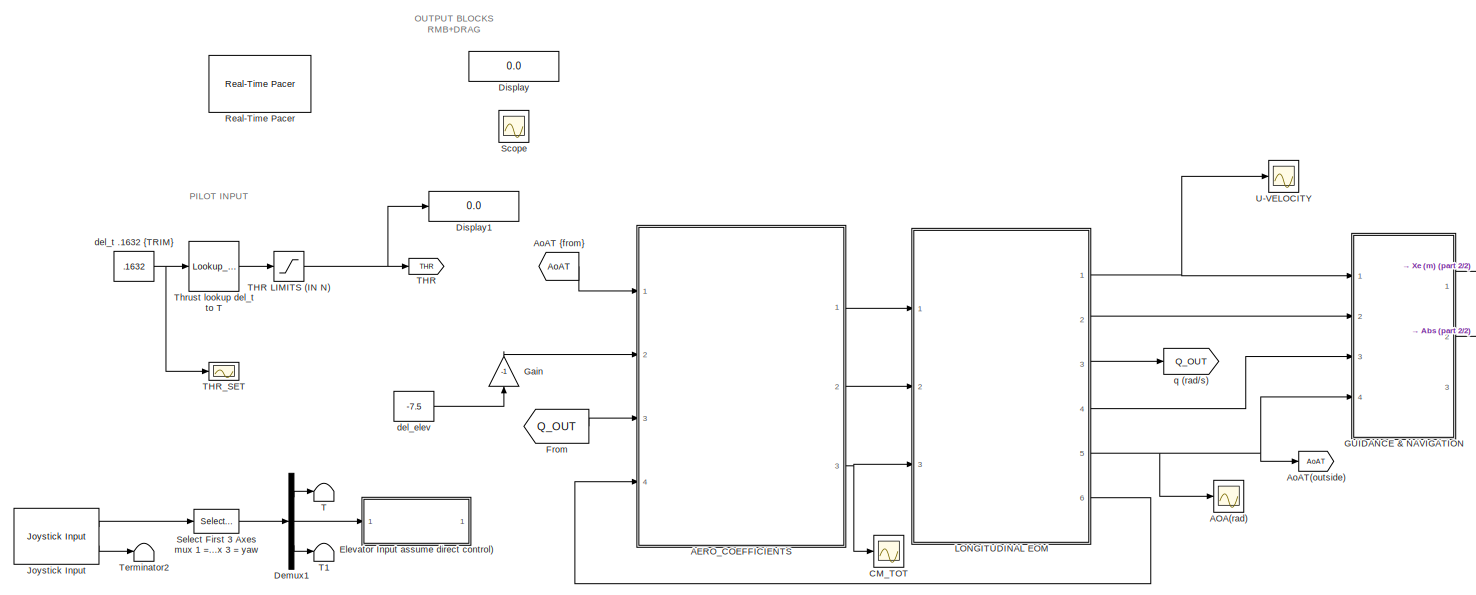
[diagram: root canvas - part 1/2, most of the canvas]
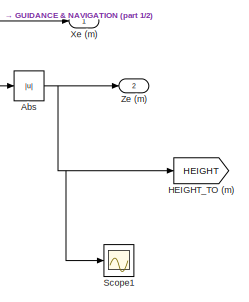
[diagram: root canvas - part 2/2, bottom right region]
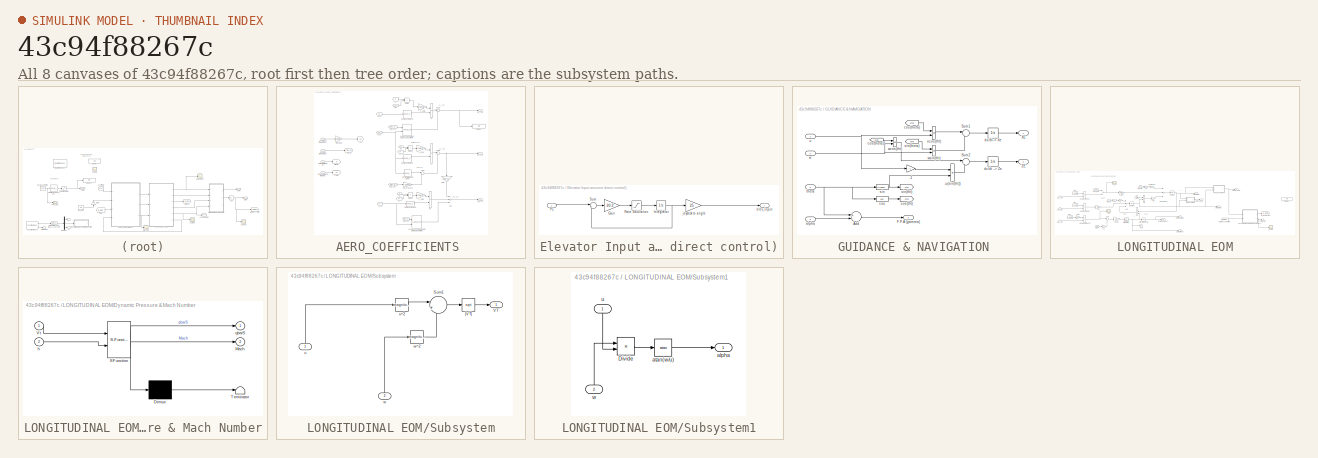
[diagram: thumbnail index - all 8 canvases of the model, root first then tree order]
MODEL slx_43c94f88267c
KIND model
CONFIG AbsTol = auto
CONFIG FixedStep = auto
CONFIG MaxStep = auto
CONFIG MinStep = auto
CONFIG RelTol = 1e-3
CONFIG SampleTimeConstraint = Unconstrained
CONFIG Solver = ode45
CONFIG SolverMode = Auto
CONFIG SolverName = ode45
CONFIG StartTime = 0.0
CONFIG StopTime = 15
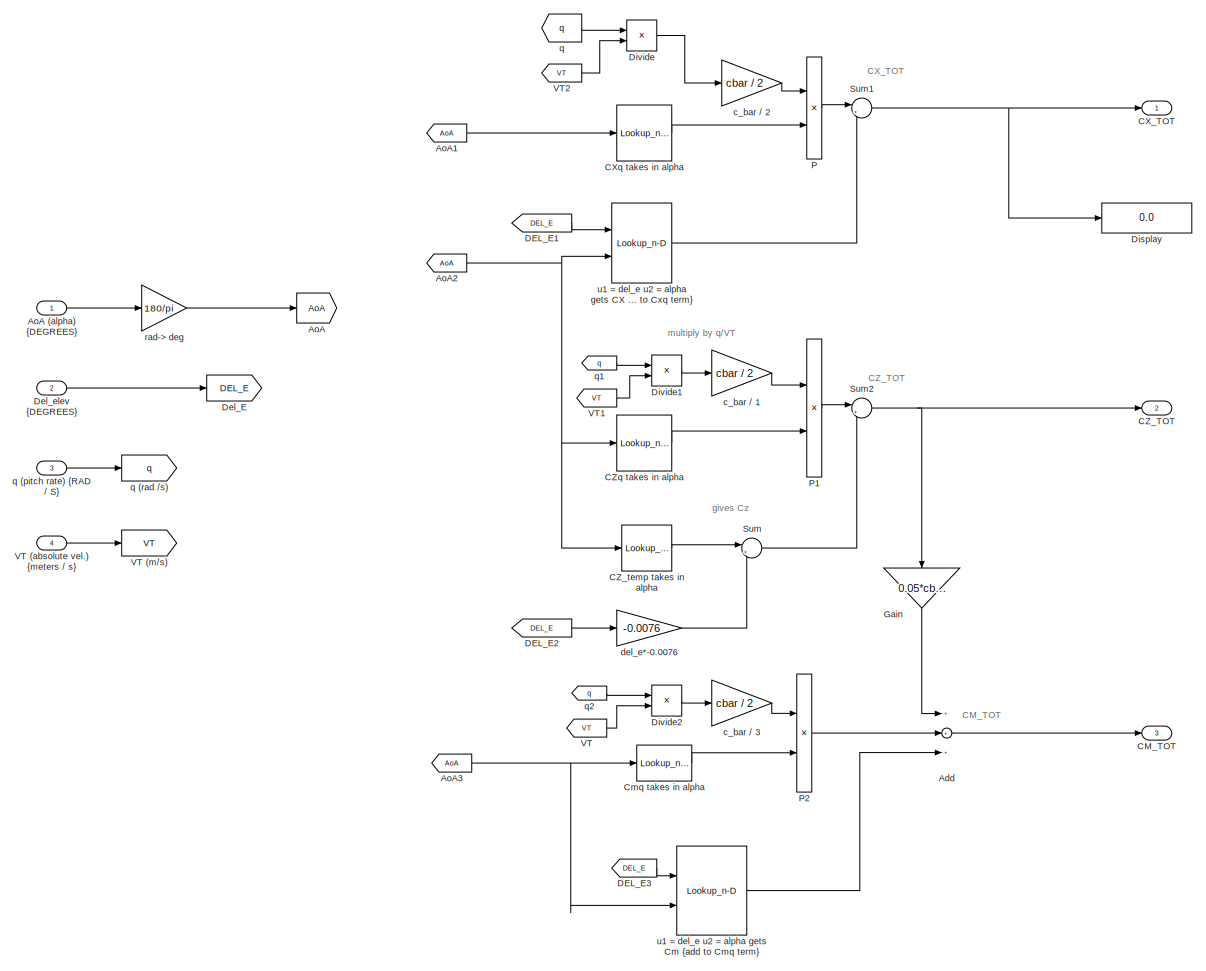
[diagram: AERO_COEFFICIENTS  - part 1/1, most of the canvas]
BLOCK [SubSystem] AERO_COEFFICIENTS 
  Ports = [4, 3]
  RequestExecContextInheritance = off
BLOCK [Sum] AERO_COEFFICIENTS /Add
  InputSameDT = off
  Inputs = +++
  OutDataTypeStr = Inherit: Inherit via internal rule
  Ports = [3, 1]
  SaturateOnIntegerOverflow = off
BLOCK [Goto] AERO_COEFFICIENTS /AoA
  GotoTag = AoA
BLOCK [Inport] AERO_COEFFICIENTS /AoA (alpha) {DEGREES}
  IconDisplay = Port number
BLOCK [From] AERO_COEFFICIENTS /AoA1
  GotoTag = AoA
BLOCK [From] AERO_COEFFICIENTS /AoA2
  GotoTag = AoA
BLOCK [From] AERO_COEFFICIENTS /AoA3
  GotoTag = AoA
BLOCK [Outport] AERO_COEFFICIENTS /CM_TOT
  IconDisplay = Port number
  Port = 3
BLOCK [Outport] AERO_COEFFICIENTS /CX_TOT
  IconDisplay = Port number
BLOCK [Lookup_n-D] AERO_COEFFICIENTS /CXq takes in alpha
  BreakpointsForDimension1 = [-10,-5,0,5,10,15,20,25,30,35,40,45]
  BreakpointsForDimension1Max = [10]
  BreakpointsForDimension1Min = [-10]
  InternalRulePriority = Speed
  NumberOfTableDimensions = 1
  OutMax = [1.000]
  OutMin = [-1.000]
  Ports = [1, 1]
  RndMeth = Simplest
  Table = [-.267,.110,.308,1.34,2.08,2.91,2.76,2.05,1.5,1.49,1.83,1.21]
BLOCK [Outport] AERO_COEFFICIENTS /CZ_TOT
  IconDisplay = Port number
  Port = 2
BLOCK [Lookup_n-D] AERO_COEFFICIENTS /CZ_temp takes in alpha
  BreakpointsForDimension1 = [-10,-5,0,5,10,15,20,25,30,35,40,45]
  BreakpointsForDimension1Max = [10]
  BreakpointsForDimension1Min = [-10]
  InternalRulePriority = Speed
  NumberOfTableDimensions = 1
  OutMax = [1.000]
  OutMin = [-1.000]
  Ports = [1, 1]
  RndMeth = Simplest
  Table = [.770, .241, -.100, -.416, -.731, -1.053, -1.366, -1.646, -1.917, -2.120, -2.248, -2.229]
BLOCK [Lookup_n-D] AERO_COEFFICIENTS /CZq takes in alpha
  BreakpointsForDimension1 = [-10,-5,0,5,10,15,20,25,30,35,40,45]
  BreakpointsForDimension1Max = [10]
  BreakpointsForDimension1Min = [-10]
  InternalRulePriority = Speed
  NumberOfTableDimensions = 1
  OutMax = [1.000]
  OutMin = [-1.000]
  Ports = [1, 1]
  RndMeth = Simplest
  Table = [-8.8, -25.8, -28.9, -31.4, -31.2, -30.7, -27.7, -28.2,   -29, -29.8, -38.3, -35.3]
BLOCK [Lookup_n-D] AERO_COEFFICIENTS /Cmq takes in alpha
  BreakpointsForDimension1 = [-10,-5,0,5,10,15,20,25,30,35,40,45]
  BreakpointsForDimension1Max = [10]
  BreakpointsForDimension1Min = [-10]
  InternalRulePriority = Speed
  NumberOfTableDimensions = 1
  OutMax = [1.000]
  OutMin = [-1.000]
  Ports = [1, 1]
  RndMeth = Simplest
  Table = [-7.21,  -.54, -5.23, -5.26, -6.11, -6.64, -5.69,    -6,  -6.2,  -6.4,  -6.6,    -6]
BLOCK [From] AERO_COEFFICIENTS /DEL_E1
  GotoTag = DEL_E
BLOCK [From] AERO_COEFFICIENTS /DEL_E2
  GotoTag = DEL_E
BLOCK [From] AERO_COEFFICIENTS /DEL_E3
  GotoTag = DEL_E
BLOCK [Goto] AERO_COEFFICIENTS /Del_E
  GotoTag = DEL_E
BLOCK [Inport] AERO_COEFFICIENTS /Del_elev {DEGREES}
  IconDisplay = Port number
  Port = 2
BLOCK [Display] AERO_COEFFICIENTS /Display
  Decimation = 1
  Ports = [1]
BLOCK [Product] AERO_COEFFICIENTS /Divide
  InputSameDT = off
  Inputs = */
  OutDataTypeStr = Inherit: Inherit via internal rule
  Ports = [2, 1]
  RndMeth = Floor
  SaturateOnIntegerOverflow = off
BLOCK [Product] AERO_COEFFICIENTS /Divide1
  InputSameDT = off
  Inputs = */
  OutDataTypeStr = Inherit: Inherit via internal rule
  Ports = [2, 1]
  RndMeth = Floor
  SaturateOnIntegerOverflow = off
BLOCK [Product] AERO_COEFFICIENTS /Divide2
  InputSameDT = off
  Inputs = */
  OutDataTypeStr = Inherit: Inherit via internal rule
  Ports = [2, 1]
  RndMeth = Floor
  SaturateOnIntegerOverflow = off
BLOCK [Gain] AERO_COEFFICIENTS /Gain
  Gain = 0.05*cbar
  OutDataTypeStr = Inherit: Inherit via internal rule
  ParamDataTypeStr = Inherit: Inherit via internal rule
  SaturateOnIntegerOverflow = off
BLOCK [Product] AERO_COEFFICIENTS /P
  InputSameDT = off
  OutDataTypeStr = Inherit: Inherit via internal rule
  Ports = [2, 1]
  RndMeth = Floor
  SaturateOnIntegerOverflow = off
BLOCK [Product] AERO_COEFFICIENTS /P1
  InputSameDT = off
  OutDataTypeStr = Inherit: Inherit via internal rule
  Ports = [2, 1]
  RndMeth = Floor
  SaturateOnIntegerOverflow = off
BLOCK [Product] AERO_COEFFICIENTS /P2
  InputSameDT = off
  OutDataTypeStr = Inherit: Inherit via internal rule
  Ports = [2, 1]
  RndMeth = Floor
  SaturateOnIntegerOverflow = off
BLOCK [Sum] AERO_COEFFICIENTS /Sum
  IconShape = round
  InputSameDT = off
  Inputs = |++
  OutDataTypeStr = Inherit: Inherit via internal rule
  Ports = [2, 1]
  SaturateOnIntegerOverflow = off
BLOCK [Sum] AERO_COEFFICIENTS /Sum1
  IconShape = round
  InputSameDT = off
  Inputs = |++
  OutDataTypeStr = Inherit: Inherit via internal rule
  Ports = [2, 1]
  SaturateOnIntegerOverflow = off
BLOCK [Sum] AERO_COEFFICIENTS /Sum2
  IconShape = round
  InputSameDT = off
  Inputs = |++
  OutDataTypeStr = Inherit: Inherit via internal rule
  Ports = [2, 1]
  SaturateOnIntegerOverflow = off
BLOCK [From] AERO_COEFFICIENTS /VT
  GotoTag = VT
BLOCK [Inport] AERO_COEFFICIENTS /VT (absolute vel.) {meters // s}
  IconDisplay = Port number
  Port = 4
BLOCK [Goto] AERO_COEFFICIENTS /VT (m//s)
  GotoTag = VT
BLOCK [From] AERO_COEFFICIENTS /VT1
  GotoTag = VT
BLOCK [From] AERO_COEFFICIENTS /VT2
  GotoTag = VT
BLOCK [Gain] AERO_COEFFICIENTS /c_bar // 1
  Gain = cbar / 2
  OutDataTypeStr = Inherit: Inherit via internal rule
  ParamDataTypeStr = Inherit: Inherit via internal rule
  SaturateOnIntegerOverflow = off
BLOCK [Gain] AERO_COEFFICIENTS /c_bar // 2
  Gain = cbar / 2
  OutDataTypeStr = Inherit: Inherit via internal rule
  ParamDataTypeStr = Inherit: Inherit via internal rule
  SaturateOnIntegerOverflow = off
BLOCK [Gain] AERO_COEFFICIENTS /c_bar // 3
  Gain = cbar / 2
  OutDataTypeStr = Inherit: Inherit via internal rule
  ParamDataTypeStr = Inherit: Inherit via internal rule
  SaturateOnIntegerOverflow = off
BLOCK [Gain] AERO_COEFFICIENTS /del_e*-0.0076
  Gain = -0.0076
  OutDataTypeStr = Inherit: Inherit via internal rule
  ParamDataTypeStr = Inherit: Inherit via internal rule
  SaturateOnIntegerOverflow = off
BLOCK [From] AERO_COEFFICIENTS /q
  GotoTag = q
BLOCK [Inport] AERO_COEFFICIENTS /q (pitch rate) {RAD // S}
  IconDisplay = Port number
  Port = 3
BLOCK [Goto] AERO_COEFFICIENTS /q (rad //s)
  GotoTag = q
BLOCK [From] AERO_COEFFICIENTS /q1
  GotoTag = q
BLOCK [From] AERO_COEFFICIENTS /q2
  GotoTag = q
BLOCK [Gain] AERO_COEFFICIENTS /rad-> deg
  Gain = 180/pi
  OutDataTypeStr = Inherit: Inherit via internal rule
  ParamDataTypeStr = Inherit: Inherit via internal rule
  SaturateOnIntegerOverflow = off
BLOCK [Lookup_n-D] AERO_COEFFICIENTS /u1 = del_e u2 = alpha gets CX {add to Cxq term}
  BreakpointsForDimension1 = [-25 -12.5 0 12.5 25]
  BreakpointsForDimension2 = [-10 -5 0 5 10 15 20 25 30 35 40 45]
  IndexSearchMethod = Evenly spaced points
  InternalRulePriority = Speed
  Ports = [2, 1]
  RndMeth = Simplest
  Table = [-.083, -.073, -.076, -.072, -.046, .012, .024, .025, .043, .053, .047, .040; -.040, -.038, -.039, -.025,  .006, .062, .087, .085, .100, .110, .104, .091;-.022, -.020, -.021, -.004,  .032, .094, .128, .130, .154, .161, .155, .138; -.048, -.038, -.040, -.021,  .016, .083, .127, .137, .162, .177, .179, .167; -.099, -.081, -.081, -.063, -.025, .044, .097, .113, .145, .167, .174, .166]
BLOCK [Lookup_n-D] AERO_COEFFICIENTS /u1 = del_e u2 = alpha gets Cm {add to Cmq term}
  BreakpointsForDimension1 = [-25 -12.5 0 12.5 25]
  BreakpointsForDimension2 = [-10 -5 0 5 10 15 20 25 30 35 40 45]
  IndexSearchMethod = Evenly spaced points
  InternalRulePriority = Speed
  Ports = [2, 1]
  RndMeth = Simplest
  Table = [.205,  .168,  .186,  .196,  .213,  .251,  .245,  .238,  .252,  .231,  .198,  .192; .081,  .077,  .107,  .110,  .110,  .141,  .127,  .119,  .133,  .108,  .081,  .093; -.046, -.020, -.009, -.005, -.006,  .010,  .006, -.001,  .014,   0.0, -.013,  .032; -.174, -.145, -.121, -.127, -.129, -.102, -.097, -.113, -.087, -.084, -.069, -.006; -.259, -.202, -.184, -.193, -.199, -.150, -.160, -.167, -.104, -....<+18ch>
BLOCK [Scope] AOA(rad)
  Floating = off
  LimitDataPoints = off
  NumInputPorts = 1
  Ports = [1]
  SaveName = AOA
  SaveToWorkspace = on
BLOCK [Abs] Abs
  SaturateOnIntegerOverflow = off
BLOCK [From] AoAT {from}
  GotoTag = AoAT
  TagVisibility = global
BLOCK [Goto] AoAT(outside)
  GotoTag = AoAT
  TagVisibility = global
BLOCK [Scope] CM_TOT
  Floating = off
  LimitDataPoints = off
  NumInputPorts = 1
  Ports = [1]
  SaveName = CMTOT
  SaveToWorkspace = on
BLOCK [Demux] Demux1
  Commented = on
  DisplayOption = bar
  Outputs = 3
  Ports = [1, 3]
BLOCK [Display] Display
  Decimation = 1
  Ports = [1]
BLOCK [Display] Display1
  Decimation = 1
  Format = bank
  Ports = [1]
BLOCK [SubSystem] Elevator Input assume direct control)
  Commented = on
  Ports = [1, 1]
  RequestExecContextInheritance = off
BLOCK [Gain] Elevator Input assume direct control)/Gain
  Gain = 20.2
BLOCK [Integrator] Elevator Input assume direct control)/Integrator 
  InitialCondition = -2.4607
  LowerSaturationLimit = -25
  Ports = [1, 1]
  UpperSaturationLimit = 25
BLOCK [Inport] Elevator Input assume direct control)/PC
  IconDisplay = Port number
BLOCK [Saturate] Elevator Input assume direct control)/Rate Saturation
  InputPortMap = u0
  LowerLimit = -60
  Ports = [1, 1]
  UpperLimit = 60
BLOCK [Sum] Elevator Input assume direct control)/Sum
  IconShape = round
  Inputs = |+-
  Ports = [2, 1]
BLOCK [Outport] Elevator Input assume direct control)/elev_input
  IconDisplay = Port number
BLOCK [Gain] Elevator Input assume direct control)/joystick to angle
  Gain = 25
BLOCK [From] From
  GotoTag = Q_OUT
BLOCK [SubSystem] GUIDANCE & NAVIGATION 
  Ports = [4, 3]
  RequestExecContextInheritance = off
BLOCK [Gain] GUIDANCE & NAVIGATION /-1
  Gain = -1
  OutDataTypeStr = Inherit: Inherit via internal rule
  ParamDataTypeStr = Inherit: Inherit via internal rule
  SaturateOnIntegerOverflow = off
BLOCK [Product] GUIDANCE & NAVIGATION /-u(sin(tht))
  InputSameDT = off
  OutDataTypeStr = Inherit: Inherit via internal rule
  Ports = [2, 1]
  RndMeth = Floor
  SaturateOnIntegerOverflow = off
BLOCK [Sum] GUIDANCE & NAVIGATION /Add
  InputSameDT = off
  Inputs = +-
  OutDataTypeStr = Inherit: Inherit via internal rule
  Ports = [2, 1]
  SaturateOnIntegerOverflow = off
BLOCK [Outport] GUIDANCE & NAVIGATION /F.P.A (gamma)
  IconDisplay = Port number
  Port = 3
BLOCK [Sum] GUIDANCE & NAVIGATION /Sum1
  IconShape = round
  InputSameDT = off
  Inputs = |++
  OutDataTypeStr = Inherit: Inherit via internal rule
  Ports = [2, 1]
  SaturateOnIntegerOverflow = off
BLOCK [Sum] GUIDANCE & NAVIGATION /Sum2
  IconShape = round
  InputSameDT = off
  Inputs = |++
  OutDataTypeStr = Inherit: Inherit via internal rule
  Ports = [2, 1]
  SaturateOnIntegerOverflow = off
BLOCK [Outport] GUIDANCE & NAVIGATION /XE
  IconDisplay = Port number
BLOCK [Outport] GUIDANCE & NAVIGATION /ZE
  IconDisplay = Port number
  Port = 2
BLOCK [Inport] GUIDANCE & NAVIGATION /alpha
  IconDisplay = Port number
  Port = 4
BLOCK [Trigonometry] GUIDANCE & NAVIGATION /cos
  Operator = cos
  Ports = [1, 1]
BLOCK [From] GUIDANCE & NAVIGATION /cos(theta)
  GotoTag = ctht
BLOCK [From] GUIDANCE & NAVIGATION /cos(theta)1
  GotoTag = ctht
BLOCK [Goto] GUIDANCE & NAVIGATION /cos(tht)
  GotoTag = ctht
BLOCK [Integrator] GUIDANCE & NAVIGATION /dx//dt--> Xe
  InitialCondition = XE_0
  Ports = [1, 1]
BLOCK [Integrator] GUIDANCE & NAVIGATION /dz//dt --> Ze
  InitialCondition = ZE_0
  Ports = [1, 1]
BLOCK [Trigonometry] GUIDANCE & NAVIGATION /sin
  Ports = [1, 1]
BLOCK [From] GUIDANCE & NAVIGATION /sin(theta)
  GotoTag = stht
BLOCK [Goto] GUIDANCE & NAVIGATION /sin(tht)
  GotoTag = stht
BLOCK [Inport] GUIDANCE & NAVIGATION /theta
  IconDisplay = Port number
  Port = 3
BLOCK [Inport] GUIDANCE & NAVIGATION /u
  IconDisplay = Port number
BLOCK [Product] GUIDANCE & NAVIGATION /ucos(tht)
  InputSameDT = off
  OutDataTypeStr = Inherit: Inherit via internal rule
  Ports = [2, 1]
  RndMeth = Floor
  SaturateOnIntegerOverflow = off
BLOCK [Inport] GUIDANCE & NAVIGATION /w
  IconDisplay = Port number
  Port = 2
BLOCK [Product] GUIDANCE & NAVIGATION /wcos(tht)
  InputSameDT = off
  OutDataTypeStr = Inherit: Inherit via internal rule
  Ports = [2, 1]
  RndMeth = Floor
  SaturateOnIntegerOverflow = off
BLOCK [Product] GUIDANCE & NAVIGATION /wsin(tht)
  InputSameDT = off
  OutDataTypeStr = Inherit: Inherit via internal rule
  Ports = [2, 1]
  RndMeth = Floor
  SaturateOnIntegerOverflow = off
BLOCK [Gain] Gain
  Gain = -1
  OutDataTypeStr = Inherit: Inherit via internal rule
  ParamDataTypeStr = Inherit: Inherit via internal rule
  SaturateOnIntegerOverflow = off
BLOCK [Goto] HEIGHT_TO (m)
  GotoTag = HEIGHT
  TagVisibility = global
BLOCK [Reference] Joystick Input  REF=vrlib/Joystick Input
  Commented = on
  Ports = [0, 2]
  SourceBlock = vrlib/Joystick Input
  SourceType = Joystick Input
  adjustports = off
  forcefeed = off
  joyid = 1
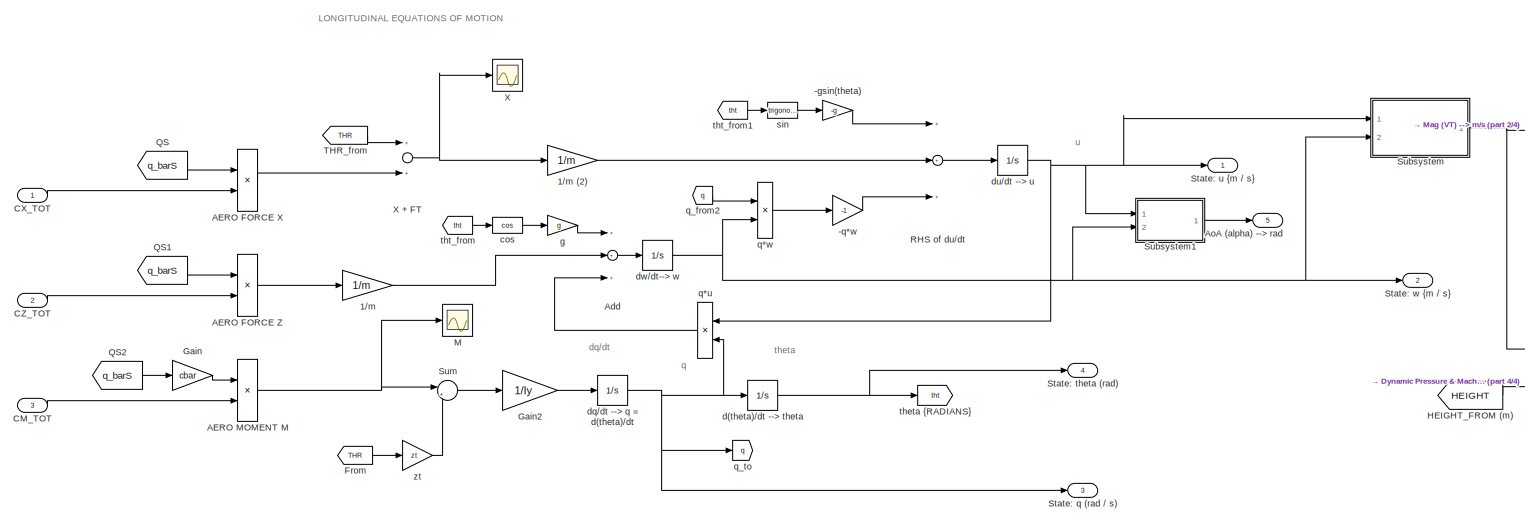
[diagram: LONGITUDINAL EOM - part 1/4, most of the canvas]
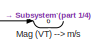
[diagram: LONGITUDINAL EOM - part 2/4, top right region]
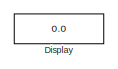
[diagram: LONGITUDINAL EOM - part 3/4, middle right region]
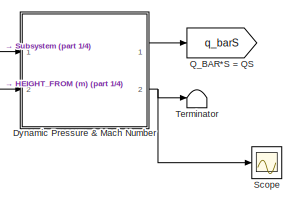
[diagram: LONGITUDINAL EOM - part 4/4, bottom right region]
BLOCK [SubSystem] LONGITUDINAL EOM
  Ports = [3, 6]
  RequestExecContextInheritance = off
BLOCK [Gain] LONGITUDINAL EOM/-gsin(theta)
  Gain = -g
  OutDataTypeStr = Inherit: Inherit via internal rule
  ParamDataTypeStr = Inherit: Inherit via internal rule
  SaturateOnIntegerOverflow = off
BLOCK [Gain] LONGITUDINAL EOM/-q*w
  Gain = -1
  OutDataTypeStr = Inherit: Inherit via internal rule
  ParamDataTypeStr = Inherit: Inherit via internal rule
  SaturateOnIntegerOverflow = off
BLOCK [Gain] LONGITUDINAL EOM/1//m
  Gain = 1/m
  OutDataTypeStr = Inherit: Inherit via internal rule
  ParamDataTypeStr = Inherit: Inherit via internal rule
  SaturateOnIntegerOverflow = off
BLOCK [Gain] LONGITUDINAL EOM/1//m (2)
  Gain = 1/m
  OutDataTypeStr = Inherit: Inherit via internal rule
  ParamDataTypeStr = Inherit: Inherit via internal rule
  SaturateOnIntegerOverflow = off
BLOCK [Product] LONGITUDINAL EOM/AERO FORCE X
  InputSameDT = off
  OutDataTypeStr = Inherit: Inherit via internal rule
  Ports = [2, 1]
  RndMeth = Floor
  SaturateOnIntegerOverflow = off
BLOCK [Product] LONGITUDINAL EOM/AERO FORCE Z
  InputSameDT = off
  OutDataTypeStr = Inherit: Inherit via internal rule
  Ports = [2, 1]
  RndMeth = Floor
  SaturateOnIntegerOverflow = off
BLOCK [Product] LONGITUDINAL EOM/AERO MOMENT M
  InputSameDT = off
  OutDataTypeStr = Inherit: Inherit via internal rule
  Ports = [2, 1]
  RndMeth = Floor
  SaturateOnIntegerOverflow = off
BLOCK [Sum] LONGITUDINAL EOM/Add
  InputSameDT = off
  Inputs = +++
  OutDataTypeStr = Inherit: Inherit via internal rule
  Ports = [3, 1]
  SaturateOnIntegerOverflow = off
BLOCK [Outport] LONGITUDINAL EOM/AoA (alpha) --> rad
  IconDisplay = Port number
  Port = 5
BLOCK [Inport] LONGITUDINAL EOM/CM_TOT
  IconDisplay = Port number
  Port = 3
BLOCK [Inport] LONGITUDINAL EOM/CX_TOT
  IconDisplay = Port number
BLOCK [Inport] LONGITUDINAL EOM/CZ_TOT
  IconDisplay = Port number
  Port = 2
BLOCK [Display] LONGITUDINAL EOM/Display
  Decimation = 1
  Ports = [1]
BLOCK [SubSystem] LONGITUDINAL EOM/Dynamic Pressure & Mach Number
  ErrorFcn = Stateflow.Translate.translate
  PermitHierarchicalResolution = ExplicitOnly
  Ports = [2, 2]
  RequestExecContextInheritance = off
  SFBlockType = MATLAB Function
  TreatAsAtomicUnit = on
BLOCK [Demux] LONGITUDINAL EOM/Dynamic Pressure & Mach Number/ Demux 
  Outputs = 1
  Ports = [1, 1]
BLOCK [S-Function] LONGITUDINAL EOM/Dynamic Pressure & Mach Number/ SFunction 
  EnableBusSupport = on
  FunctionName = sf_sfun
  PortCounts = [2 3]
  Ports = [2, 3]
  Tag = Stateflow S-Function nonlinear_sim 2
BLOCK [Terminator] LONGITUDINAL EOM/Dynamic Pressure & Mach Number/ Terminator 
BLOCK [Outport] LONGITUDINAL EOM/Dynamic Pressure & Mach Number/Mach
  IconDisplay = Port number
  Port = 2
BLOCK [Inport] LONGITUDINAL EOM/Dynamic Pressure & Mach Number/Vt
  IconDisplay = Port number
BLOCK [Inport] LONGITUDINAL EOM/Dynamic Pressure & Mach Number/h
  IconDisplay = Port number
  Port = 2
BLOCK [Outport] LONGITUDINAL EOM/Dynamic Pressure & Mach Number/qbarS
  IconDisplay = Port number
BLOCK [From] LONGITUDINAL EOM/From
  GotoTag = THR
  TagVisibility = global
BLOCK [Gain] LONGITUDINAL EOM/Gain
  Gain = cbar
  OutDataTypeStr = Inherit: Inherit via internal rule
  ParamDataTypeStr = Inherit: Inherit via internal rule
  SaturateOnIntegerOverflow = off
BLOCK [Gain] LONGITUDINAL EOM/Gain2
  Gain = 1/Iy
  OutDataTypeStr = Inherit: Inherit via internal rule
  ParamDataTypeStr = Inherit: Inherit via internal rule
  SaturateOnIntegerOverflow = off
BLOCK [From] LONGITUDINAL EOM/HEIGHT_FROM (m)
  GotoTag = HEIGHT
  TagVisibility = global
BLOCK [Scope] LONGITUDINAL EOM/M
  Floating = off
  LimitDataPoints = off
  NumInputPorts = 1
  Ports = [1]
  SaveName = MMOMENT
  SaveToWorkspace = on
  YMax = 80000
  YMin = -10000
BLOCK [Outport] LONGITUDINAL EOM/Mag (VT) --> m//s
  IconDisplay = Port number
  Port = 6
BLOCK [From] LONGITUDINAL EOM/QS
  GotoTag = q_barS
BLOCK [From] LONGITUDINAL EOM/QS1
  GotoTag = q_barS
BLOCK [From] LONGITUDINAL EOM/QS2
  GotoTag = q_barS
BLOCK [Goto] LONGITUDINAL EOM/Q_BAR*S = QS
  GotoTag = q_barS
BLOCK [Sum] LONGITUDINAL EOM/RHS of du//dt
  InputSameDT = off
  Inputs = +++
  OutDataTypeStr = Inherit: Inherit via internal rule
  Ports = [3, 1]
  SaturateOnIntegerOverflow = off
BLOCK [Scope] LONGITUDINAL EOM/Scope
  Floating = off
  NumInputPorts = 1
  Ports = [1]
  SaveName = ScopeData1
BLOCK [Outport] LONGITUDINAL EOM/State: q (rad // s)
  IconDisplay = Port number
  Port = 3
BLOCK [Outport] LONGITUDINAL EOM/State: theta (rad)
  IconDisplay = Port number
  Port = 4
BLOCK [Outport] LONGITUDINAL EOM/State: u {m // s}
  IconDisplay = Port number
BLOCK [Outport] LONGITUDINAL EOM/State: w {m // s}
  IconDisplay = Port number
  Port = 2
BLOCK [SubSystem] LONGITUDINAL EOM/Subsystem
  Ports = [2, 1]
  RequestExecContextInheritance = off
BLOCK [Sum] LONGITUDINAL EOM/Subsystem/Sum1
  IconShape = round
  InputSameDT = off
  Inputs = |++
  OutDataTypeStr = Inherit: Inherit via internal rule
  Ports = [2, 1]
  SaturateOnIntegerOverflow = off
BLOCK [Outport] LONGITUDINAL EOM/Subsystem/VT
  IconDisplay = Port number
BLOCK [Inport] LONGITUDINAL EOM/Subsystem/u
  IconDisplay = Port number
BLOCK [Math] LONGITUDINAL EOM/Subsystem/u^2
  Operator = magnitude^2
  Ports = [1, 1]
BLOCK [Inport] LONGITUDINAL EOM/Subsystem/w
  IconDisplay = Port number
  Port = 2
BLOCK [Math] LONGITUDINAL EOM/Subsystem/w^2
  Operator = magnitude^2
  Ports = [1, 1]
BLOCK [Sqrt] LONGITUDINAL EOM/Subsystem/|VT|
BLOCK [SubSystem] LONGITUDINAL EOM/Subsystem1
  Ports = [2, 1]
  RequestExecContextInheritance = off
BLOCK [Product] LONGITUDINAL EOM/Subsystem1/Divide
  InputSameDT = off
  Inputs = */
  OutDataTypeStr = Inherit: Inherit via internal rule
  Ports = [2, 1]
  RndMeth = Floor
  SaturateOnIntegerOverflow = off
BLOCK [Outport] LONGITUDINAL EOM/Subsystem1/alpha
  IconDisplay = Port number
BLOCK [Trigonometry] LONGITUDINAL EOM/Subsystem1/atan(w//u)
  Operator = atan
  Ports = [1, 1]
BLOCK [Inport] LONGITUDINAL EOM/Subsystem1/u
  IconDisplay = Port number
BLOCK [Inport] LONGITUDINAL EOM/Subsystem1/w
  IconDisplay = Port number
  Port = 2
BLOCK [Sum] LONGITUDINAL EOM/Sum
  IconShape = round
  InputSameDT = off
  Inputs = |++
  OutDataTypeStr = Inherit: Inherit via internal rule
  Ports = [2, 1]
  SaturateOnIntegerOverflow = off
BLOCK [From] LONGITUDINAL EOM/THR_from
  GotoTag = THR
  TagVisibility = global
BLOCK [Terminator] LONGITUDINAL EOM/Terminator
BLOCK [Scope] LONGITUDINAL EOM/X
  Floating = off
  LimitDataPoints = off
  NumInputPorts = 1
  Ports = [1]
  SaveName = XFORCE
  SaveToWorkspace = on
BLOCK [Sum] LONGITUDINAL EOM/X + FT
  InputSameDT = off
  OutDataTypeStr = Inherit: Inherit via internal rule
  Ports = [2, 1]
  SaturateOnIntegerOverflow = off
BLOCK [Trigonometry] LONGITUDINAL EOM/cos
  Operator = cos
  Ports = [1, 1]
BLOCK [Integrator] LONGITUDINAL EOM/d(theta)//dt --> theta
  InitialCondition = theta_0
  Ports = [1, 1]
BLOCK [Integrator] LONGITUDINAL EOM/dq//dt --> q = d(theta)//dt
  InitialCondition = q_0
  Ports = [1, 1]
BLOCK [Integrator] LONGITUDINAL EOM/du//dt --> u
  InitialCondition = u_0
  LimitOutput = on
  LowerSaturationLimit = 0
  Ports = [1, 1]
BLOCK [Integrator] LONGITUDINAL EOM/dw//dt--> w
  InitialCondition = w_0
  Ports = [1, 1]
BLOCK [Gain] LONGITUDINAL EOM/g
  Gain = g
  OutDataTypeStr = Inherit: Inherit via internal rule
  ParamDataTypeStr = Inherit: Inherit via internal rule
  SaturateOnIntegerOverflow = off
BLOCK [Product] LONGITUDINAL EOM/q*u
  InputSameDT = off
  OutDataTypeStr = Inherit: Inherit via internal rule
  Ports = [2, 1]
  RndMeth = Floor
  SaturateOnIntegerOverflow = off
BLOCK [Product] LONGITUDINAL EOM/q*w
  InputSameDT = off
  OutDataTypeStr = Inherit: Inherit via internal rule
  Ports = [2, 1]
  RndMeth = Floor
  SaturateOnIntegerOverflow = off
BLOCK [From] LONGITUDINAL EOM/q_from2
  GotoTag = q
  TagVisibility = global
BLOCK [Goto] LONGITUDINAL EOM/q_to
  GotoTag = q
  TagVisibility = global
BLOCK [Trigonometry] LONGITUDINAL EOM/sin
  Ports = [1, 1]
BLOCK [Goto] LONGITUDINAL EOM/theta {RADIANS}
  GotoTag = tht
BLOCK [From] LONGITUDINAL EOM/tht_from
  GotoTag = tht
BLOCK [From] LONGITUDINAL EOM/tht_from1
  GotoTag = tht
BLOCK [Gain] LONGITUDINAL EOM/zt
  Gain = zt
  OutDataTypeStr = Inherit: Inherit via internal rule
  ParamDataTypeStr = Inherit: Inherit via internal rule
  SaturateOnIntegerOverflow = off
BLOCK [Reference] Real-Time Pacer  REF=realtime_pacer_lib/Real-Time Pacer
  Ports = []
  SourceBlock = realtime_pacer_lib/Real-Time Pacer
  SourceType = RealTime_Pacer
  simTimePerRealTime = 1
BLOCK [Scope] Scope
  Floating = off
  NumInputPorts = 1
  Ports = [1]
BLOCK [Scope] Scope1
  Floating = off
  LimitDataPoints = off
  NumInputPorts = 1
  Ports = [1]
  SaveName = ALT
  SaveToWorkspace = on
  TimeRange = 45
  YMax = 2010
  YMin = 1990
BLOCK [Selector] Select First 3 Axes mux 1 = roll mux 2 = pitch mux 3 = yaw
  AttributesFormatString = (Joystick - dependent)
  Commented = on
  Indices = [1 2 3]
  InputPortWidth = 8
  Ports = [1, 1]
BLOCK [Terminator] T
  Commented = on
BLOCK [Terminator] T1
  Commented = on
BLOCK [Goto] THR
  GotoTag = THR
  TagVisibility = global
BLOCK [Saturate] THR LIMITS (IN N)
  InputPortMap = u0
  LowerLimit = 4448
  Ports = [1, 1]
  UpperLimit = 84516
  ZeroCross = off
BLOCK [Scope] THR_SET
  Floating = off
  LimitDataPoints = off
  NumInputPorts = 1
  Ports = [1]
  SaveName = ELEVIN
  SaveToWorkspace = on
  YMax = 0.75
  YMin = 0
BLOCK [Terminator] Terminator2
  Commented = on
BLOCK [Lookup_n-D] Thrust lookup del_t to T
  BreakpointsForDimension1 = [0.15000, .19470, .23950, .28420, .32890, .37370, .41840, .4632, 0.5079, 0.5526, 0.5974, 0.6421, 0.6868, 0.7316, 0.7763, 0.8211, 0.8658, 0.9105, 0.9553, 1.0000]
  InternalRulePriority = Speed
  NumberOfTableDimensions = 1
  Ports = [1, 1]
  RndMeth = Simplest
  Table = [4448.00, 8662.11, 12876.21, 17090.32, 21304.42 , 25518.53, 29732.63, 33946.74, 38160.84, 42374.95, 46589.05, 50803.16, 55017.26, 59231.37, 63445.47, 67659.58, 71873.6, 76087.7, 80301.89, 84516.00]
BLOCK [Scope] U-VELOCITY
  Floating = off
  LimitDataPoints = off
  NumInputPorts = 1
  Ports = [1]
  SaveName = W
  SaveToWorkspace = on
  YMax = 155
  YMin = 135
BLOCK [Outport] Xe (m)
  IconDisplay = Port number
BLOCK [Outport] Ze (m)
  IconDisplay = Port number
  Port = 2
BLOCK [Constant] del_elev
  Value = -7.5
BLOCK [Constant] del_t .1632 {TRIM}
  Value = .1632
BLOCK [Goto] q (rad//s)
  GotoTag = Q_OUT
ANNOTATION (root): PILOT INPUT
ANNOTATION (root): OUTPUT BLOCKS RMB+DRAG
ANNOTATION AERO_COEFFICIENTS : CM_TOT
ANNOTATION AERO_COEFFICIENTS : CX_TOT
ANNOTATION AERO_COEFFICIENTS : CZ_TOT
ANNOTATION AERO_COEFFICIENTS : gives Cz
ANNOTATION AERO_COEFFICIENTS : multiply by q/VT
ANNOTATION LONGITUDINAL EOM: q
ANNOTATION LONGITUDINAL EOM: LONGITUDINAL EQUATIONS OF MOTION
ANNOTATION LONGITUDINAL EOM: theta
ANNOTATION LONGITUDINAL EOM: d q /dt
ANNOTATION LONGITUDINAL EOM: u
LINE AERO_COEFFICIENTS /Add:1 -> AERO_COEFFICIENTS /CM_TOT:1
LINE AERO_COEFFICIENTS /AoA (alpha) {DEGREES}:1 -> AERO_COEFFICIENTS /rad-> deg:1
LINE AERO_COEFFICIENTS /AoA1:1 -> AERO_COEFFICIENTS /CXq takes in alpha:1
NET AERO_COEFFICIENTS /AoA2:1 -> AERO_COEFFICIENTS /CZ_temp takes in alpha:1, AERO_COEFFICIENTS /CZq takes in alpha:1, AERO_COEFFICIENTS /u1 = del_e u2 = alpha gets CX {add to Cxq term}:2
NET AERO_COEFFICIENTS /AoA3:1 -> AERO_COEFFICIENTS /Cmq takes in alpha:1, AERO_COEFFICIENTS /u1 = del_e u2 = alpha gets Cm {add to Cmq term}:2
LINE AERO_COEFFICIENTS /CXq takes in alpha:1 -> AERO_COEFFICIENTS /P:2
LINE AERO_COEFFICIENTS /CZ_temp takes in alpha:1 -> AERO_COEFFICIENTS /Sum:1
LINE AERO_COEFFICIENTS /CZq takes in alpha:1 -> AERO_COEFFICIENTS /P1:2
LINE AERO_COEFFICIENTS /Cmq takes in alpha:1 -> AERO_COEFFICIENTS /P2:2
LINE AERO_COEFFICIENTS /DEL_E1:1 -> AERO_COEFFICIENTS /u1 = del_e u2 = alpha gets CX {add to Cxq term}:1
LINE AERO_COEFFICIENTS /DEL_E2:1 -> AERO_COEFFICIENTS /del_e*-0.0076:1
LINE AERO_COEFFICIENTS /DEL_E3:1 -> AERO_COEFFICIENTS /u1 = del_e u2 = alpha gets Cm {add to Cmq term}:1
LINE AERO_COEFFICIENTS /Del_elev {DEGREES}:1 -> AERO_COEFFICIENTS /Del_E:1
LINE AERO_COEFFICIENTS /Divide1:1 -> AERO_COEFFICIENTS /c_bar // 1:1
LINE AERO_COEFFICIENTS /Divide2:1 -> AERO_COEFFICIENTS /c_bar // 3:1
LINE AERO_COEFFICIENTS /Divide:1 -> AERO_COEFFICIENTS /c_bar // 2:1
LINE AERO_COEFFICIENTS /Gain:1 -> AERO_COEFFICIENTS /Add:1
LINE AERO_COEFFICIENTS /P1:1 -> AERO_COEFFICIENTS /Sum2:1
LINE AERO_COEFFICIENTS /P2:1 -> AERO_COEFFICIENTS /Add:2
LINE AERO_COEFFICIENTS /P:1 -> AERO_COEFFICIENTS /Sum1:1
NET AERO_COEFFICIENTS /Sum1:1 -> AERO_COEFFICIENTS /CX_TOT:1, AERO_COEFFICIENTS /Display:1
NET AERO_COEFFICIENTS /Sum2:1 -> AERO_COEFFICIENTS /CZ_TOT:1, AERO_COEFFICIENTS /Gain:1
LINE AERO_COEFFICIENTS /Sum:1 -> AERO_COEFFICIENTS /Sum2:2
LINE AERO_COEFFICIENTS /VT (absolute vel.) {meters // s}:1 -> AERO_COEFFICIENTS /VT (m//s):1
LINE AERO_COEFFICIENTS /VT1:1 -> AERO_COEFFICIENTS /Divide1:2
LINE AERO_COEFFICIENTS /VT2:1 -> AERO_COEFFICIENTS /Divide:2
LINE AERO_COEFFICIENTS /VT:1 -> AERO_COEFFICIENTS /Divide2:2
LINE AERO_COEFFICIENTS /c_bar // 1:1 -> AERO_COEFFICIENTS /P1:1
LINE AERO_COEFFICIENTS /c_bar // 2:1 -> AERO_COEFFICIENTS /P:1
LINE AERO_COEFFICIENTS /c_bar // 3:1 -> AERO_COEFFICIENTS /P2:1
LINE AERO_COEFFICIENTS /del_e*-0.0076:1 -> AERO_COEFFICIENTS /Sum:2
LINE AERO_COEFFICIENTS /q (pitch rate) {RAD // S}:1 -> AERO_COEFFICIENTS /q (rad //s):1
LINE AERO_COEFFICIENTS /q1:1 -> AERO_COEFFICIENTS /Divide1:1
LINE AERO_COEFFICIENTS /q2:1 -> AERO_COEFFICIENTS /Divide2:1
LINE AERO_COEFFICIENTS /q:1 -> AERO_COEFFICIENTS /Divide:1
LINE AERO_COEFFICIENTS /rad-> deg:1 -> AERO_COEFFICIENTS /AoA:1
LINE AERO_COEFFICIENTS /u1 = del_e u2 = alpha gets CX {add to Cxq term}:1 -> AERO_COEFFICIENTS /Sum1:2
LINE AERO_COEFFICIENTS /u1 = del_e u2 = alpha gets Cm {add to Cmq term}:1 -> AERO_COEFFICIENTS /Add:3
LINE AERO_COEFFICIENTS :1 -> LONGITUDINAL EOM:1
LINE AERO_COEFFICIENTS :2 -> LONGITUDINAL EOM:2
NET AERO_COEFFICIENTS :3 -> CM_TOT:1, LONGITUDINAL EOM:3
NET Abs:1 -> HEIGHT_TO (m):1, Scope1:1, Ze (m):1
LINE AoAT {from}:1 -> AERO_COEFFICIENTS :1
LINE Demux1:1 -> T:1
LINE Demux1:2 -> Elevator Input assume direct control):1
LINE Demux1:3 -> T1:1
LINE Elevator Input assume direct control)/Gain:1 -> Elevator Input assume direct control)/Rate Saturation:1
NET Elevator Input assume direct control)/Integrator :1 -> Elevator Input assume direct control)/Sum:2, Elevator Input assume direct control)/joystick to angle:1
LINE Elevator Input assume direct control)/PC:1 -> Elevator Input assume direct control)/Sum:1
LINE Elevator Input assume direct control)/Rate Saturation:1 -> Elevator Input assume direct control)/Integrator :1
LINE Elevator Input assume direct control)/Sum:1 -> Elevator Input assume direct control)/Gain:1
LINE Elevator Input assume direct control)/joystick to angle:1 -> Elevator Input assume direct control)/elev_input:1
LINE From:1 -> AERO_COEFFICIENTS :3
LINE GUIDANCE & NAVIGATION /-1:1 -> GUIDANCE & NAVIGATION /-u(sin(tht)):1
LINE GUIDANCE & NAVIGATION /-u(sin(tht)):1 -> GUIDANCE & NAVIGATION /Sum2:2
LINE GUIDANCE & NAVIGATION /Add:1 -> GUIDANCE & NAVIGATION /F.P.A (gamma):1
LINE GUIDANCE & NAVIGATION /Sum1:1 -> GUIDANCE & NAVIGATION /dx//dt--> Xe:1
LINE GUIDANCE & NAVIGATION /Sum2:1 -> GUIDANCE & NAVIGATION /dz//dt --> Ze:1
LINE GUIDANCE & NAVIGATION /alpha:1 -> GUIDANCE & NAVIGATION /Add:2
LINE GUIDANCE & NAVIGATION /cos(theta)1:1 -> GUIDANCE & NAVIGATION /wcos(tht):1
LINE GUIDANCE & NAVIGATION /cos(theta):1 -> GUIDANCE & NAVIGATION /ucos(tht):1
LINE GUIDANCE & NAVIGATION /cos:1 -> GUIDANCE & NAVIGATION /cos(tht):1
LINE GUIDANCE & NAVIGATION /dx//dt--> Xe:1 -> GUIDANCE & NAVIGATION /XE:1
LINE GUIDANCE & NAVIGATION /dz//dt --> Ze:1 -> GUIDANCE & NAVIGATION /ZE:1
LINE GUIDANCE & NAVIGATION /sin(theta):1 -> GUIDANCE & NAVIGATION /wsin(tht):1
NET GUIDANCE & NAVIGATION /sin:1 -> GUIDANCE & NAVIGATION /-u(sin(tht)):2, GUIDANCE & NAVIGATION /sin(tht):1
NET GUIDANCE & NAVIGATION /theta:1 -> GUIDANCE & NAVIGATION /Add:1, GUIDANCE & NAVIGATION /cos:1, GUIDANCE & NAVIGATION /sin:1
NET GUIDANCE & NAVIGATION /u:1 -> GUIDANCE & NAVIGATION /-1:1, GUIDANCE & NAVIGATION /ucos(tht):2
LINE GUIDANCE & NAVIGATION /ucos(tht):1 -> GUIDANCE & NAVIGATION /Sum1:1
NET GUIDANCE & NAVIGATION /w:1 -> GUIDANCE & NAVIGATION /wcos(tht):2, GUIDANCE & NAVIGATION /wsin(tht):2
LINE GUIDANCE & NAVIGATION /wcos(tht):1 -> GUIDANCE & NAVIGATION /Sum2:1
LINE GUIDANCE & NAVIGATION /wsin(tht):1 -> GUIDANCE & NAVIGATION /Sum1:2
LINE GUIDANCE & NAVIGATION :1 -> Xe (m):1
LINE GUIDANCE & NAVIGATION :2 -> Abs:1
LINE Gain:1 -> AERO_COEFFICIENTS :2
LINE Joystick Input:1 -> Select First 3 Axes mux 1 = roll mux 2 = pitch mux 3 = yaw:1
LINE Joystick Input:2 -> Terminator2:1
LINE LONGITUDINAL EOM/-gsin(theta):1 -> LONGITUDINAL EOM/RHS of du//dt:1
LINE LONGITUDINAL EOM/-q*w:1 -> LONGITUDINAL EOM/RHS of du//dt:3
LINE LONGITUDINAL EOM/1//m (2):1 -> LONGITUDINAL EOM/RHS of du//dt:2
LINE LONGITUDINAL EOM/1//m:1 -> LONGITUDINAL EOM/Add:2
LINE LONGITUDINAL EOM/AERO FORCE X:1 -> LONGITUDINAL EOM/X + FT:2
LINE LONGITUDINAL EOM/AERO FORCE Z:1 -> LONGITUDINAL EOM/1//m:1
NET LONGITUDINAL EOM/AERO MOMENT M:1 -> LONGITUDINAL EOM/M:1, LONGITUDINAL EOM/Sum:1
LINE LONGITUDINAL EOM/Add:1 -> LONGITUDINAL EOM/dw//dt--> w:1
LINE LONGITUDINAL EOM/CM_TOT:1 -> LONGITUDINAL EOM/AERO MOMENT M:2
LINE LONGITUDINAL EOM/CX_TOT:1 -> LONGITUDINAL EOM/AERO FORCE X:2
LINE LONGITUDINAL EOM/CZ_TOT:1 -> LONGITUDINAL EOM/AERO FORCE Z:2
LINE LONGITUDINAL EOM/Dynamic Pressure & Mach Number:1 -> LONGITUDINAL EOM/Q_BAR*S = QS:1
NET LONGITUDINAL EOM/Dynamic Pressure & Mach Number:2 -> LONGITUDINAL EOM/Scope:1, LONGITUDINAL EOM/Terminator:1
LINE LONGITUDINAL EOM/From:1 -> LONGITUDINAL EOM/zt:1
LINE LONGITUDINAL EOM/Gain2:1 -> LONGITUDINAL EOM/dq//dt --> q = d(theta)//dt:1
LINE LONGITUDINAL EOM/Gain:1 -> LONGITUDINAL EOM/AERO MOMENT M:1
LINE LONGITUDINAL EOM/HEIGHT_FROM (m):1 -> LONGITUDINAL EOM/Dynamic Pressure & Mach Number:2
LINE LONGITUDINAL EOM/QS1:1 -> LONGITUDINAL EOM/AERO FORCE Z:1
LINE LONGITUDINAL EOM/QS2:1 -> LONGITUDINAL EOM/Gain:1
LINE LONGITUDINAL EOM/QS:1 -> LONGITUDINAL EOM/AERO FORCE X:1
LINE LONGITUDINAL EOM/RHS of du//dt:1 -> LONGITUDINAL EOM/du//dt --> u:1
LINE LONGITUDINAL EOM/Subsystem/Sum1:1 -> LONGITUDINAL EOM/Subsystem/|VT|:1
LINE LONGITUDINAL EOM/Subsystem/u:1 -> LONGITUDINAL EOM/Subsystem/u^2:1
LINE LONGITUDINAL EOM/Subsystem/u^2:1 -> LONGITUDINAL EOM/Subsystem/Sum1:1
LINE LONGITUDINAL EOM/Subsystem/w:1 -> LONGITUDINAL EOM/Subsystem/w^2:1
LINE LONGITUDINAL EOM/Subsystem/w^2:1 -> LONGITUDINAL EOM/Subsystem/Sum1:2
LINE LONGITUDINAL EOM/Subsystem/|VT|:1 -> LONGITUDINAL EOM/Subsystem/VT:1
LINE LONGITUDINAL EOM/Subsystem1/Divide:1 -> LONGITUDINAL EOM/Subsystem1/atan(w//u):1
LINE LONGITUDINAL EOM/Subsystem1/atan(w//u):1 -> LONGITUDINAL EOM/Subsystem1/alpha:1
LINE LONGITUDINAL EOM/Subsystem1/u:1 -> LONGITUDINAL EOM/Subsystem1/Divide:2
LINE LONGITUDINAL EOM/Subsystem1/w:1 -> LONGITUDINAL EOM/Subsystem1/Divide:1
LINE LONGITUDINAL EOM/Subsystem1:1 -> LONGITUDINAL EOM/AoA (alpha) --> rad:1
NET LONGITUDINAL EOM/Subsystem:1 -> LONGITUDINAL EOM/Dynamic Pressure & Mach Number:1, LONGITUDINAL EOM/Mag (VT) --> m//s:1
LINE LONGITUDINAL EOM/Sum:1 -> LONGITUDINAL EOM/Gain2:1
LINE LONGITUDINAL EOM/THR_from:1 -> LONGITUDINAL EOM/X + FT:1
NET LONGITUDINAL EOM/X + FT:1 -> LONGITUDINAL EOM/1//m (2):1, LONGITUDINAL EOM/X:1
LINE LONGITUDINAL EOM/cos:1 -> LONGITUDINAL EOM/g:1
NET LONGITUDINAL EOM/d(theta)//dt --> theta:1 -> LONGITUDINAL EOM/State: theta (rad):1, LONGITUDINAL EOM/theta {RADIANS}:1
NET LONGITUDINAL EOM/dq//dt --> q = d(theta)//dt:1 -> LONGITUDINAL EOM/State: q (rad // s):1, LONGITUDINAL EOM/d(theta)//dt --> theta:1, LONGITUDINAL EOM/q*u:2, LONGITUDINAL EOM/q_to:1
NET LONGITUDINAL EOM/du//dt --> u:1 -> LONGITUDINAL EOM/State: u {m // s}:1, LONGITUDINAL EOM/Subsystem1:1, LONGITUDINAL EOM/Subsystem:1, LONGITUDINAL EOM/q*u:1
NET LONGITUDINAL EOM/dw//dt--> w:1 -> LONGITUDINAL EOM/State: w {m // s}:1, LONGITUDINAL EOM/Subsystem1:2, LONGITUDINAL EOM/Subsystem:2, LONGITUDINAL EOM/q*w:2
LINE LONGITUDINAL EOM/g:1 -> LONGITUDINAL EOM/Add:1
LINE LONGITUDINAL EOM/q*u:1 -> LONGITUDINAL EOM/Add:3
LINE LONGITUDINAL EOM/q*w:1 -> LONGITUDINAL EOM/-q*w:1
LINE LONGITUDINAL EOM/q_from2:1 -> LONGITUDINAL EOM/q*w:1
LINE LONGITUDINAL EOM/sin:1 -> LONGITUDINAL EOM/-gsin(theta):1
LINE LONGITUDINAL EOM/tht_from1:1 -> LONGITUDINAL EOM/sin:1
LINE LONGITUDINAL EOM/tht_from:1 -> LONGITUDINAL EOM/cos:1
LINE LONGITUDINAL EOM/zt:1 -> LONGITUDINAL EOM/Sum:2
NET LONGITUDINAL EOM:1 -> GUIDANCE & NAVIGATION :1, U-VELOCITY:1
LINE LONGITUDINAL EOM:2 -> GUIDANCE & NAVIGATION :2
LINE LONGITUDINAL EOM:3 -> q (rad//s):1
LINE LONGITUDINAL EOM:4 -> GUIDANCE & NAVIGATION :3
NET LONGITUDINAL EOM:5 -> AOA(rad):1, AoAT(outside):1, GUIDANCE & NAVIGATION :4
LINE LONGITUDINAL EOM:6 -> AERO_COEFFICIENTS :4
LINE Select First 3 Axes mux 1 = roll mux 2 = pitch mux 3 = yaw:1 -> Demux1:1
NET THR LIMITS (IN N):1 -> Display1:1, THR:1
LINE Thrust lookup del_t to T:1 -> THR LIMITS (IN N):1
LINE del_elev:1 -> Gain:1
NET del_t .1632 {TRIM}:1 -> THR_SET:1, Thrust lookup del_t to T:1
note: NET lines group one-source signal fan-out (src -> all destinations, sorted); 1:1 wires keep LINE
CHART LONGITUDINAL EOM/Dynamic Pressure
& Mach Number states=1 transitions=1
  STATE_LABEL 'eML_blk_kernel()'
  STATE_LABEL 'SCRIPT:\nfunction [qbarS, Mach] = ATMOS(Vt, h)\n%#codegen\n%SI UNITS EVERYTHING\n%calculate density\n%max height, note h > 0\nif h>=11000\n    h = 11000;\nend\nT = 288.15 - 0.0065*h;\nrho = 1.225*exp(-9.81*h/(287.05*T));\na = sqrt(1.4*287.05*T);\n\n%dynamic pressure\nq_bar = 0.5*Vt^2*rho;\nS = 27.87;\n\n%Mach #\nMach = Vt/a;\nqbarS = q_bar*S;\n'
